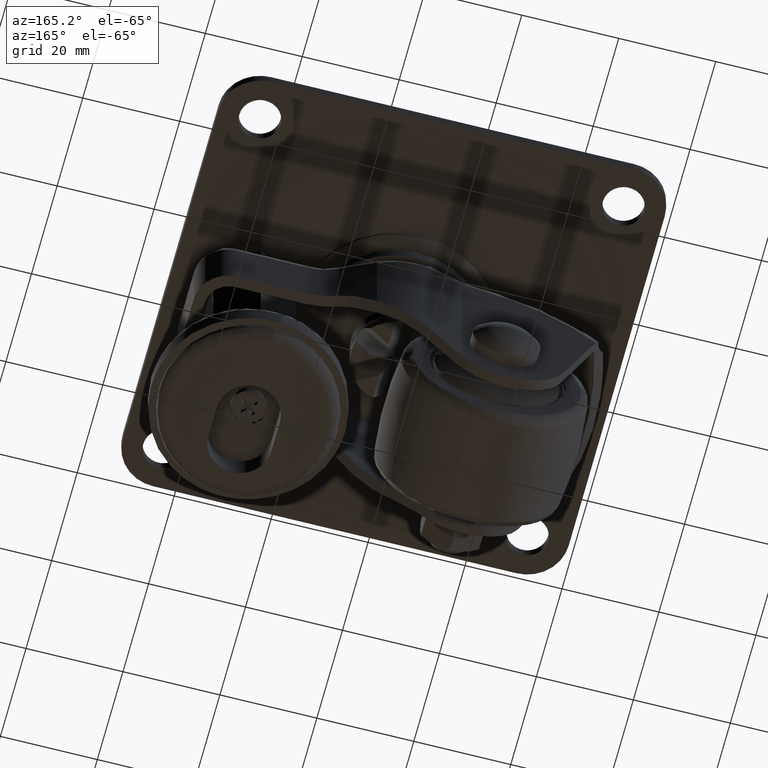
[diagram: clean part render]
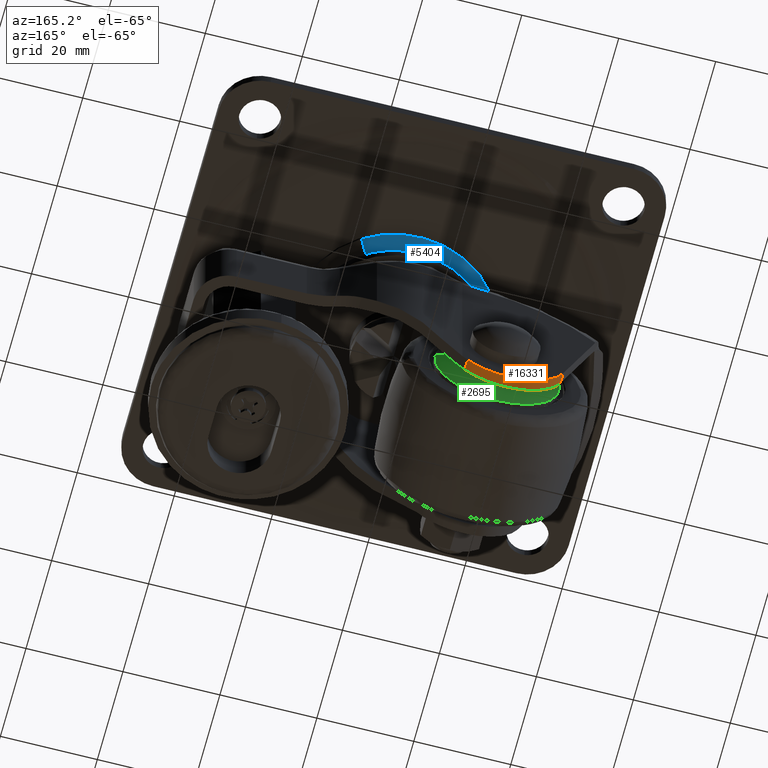
[diagram: same view with three faces highlighted in distinct colors, each labeled with its STEP entity id]
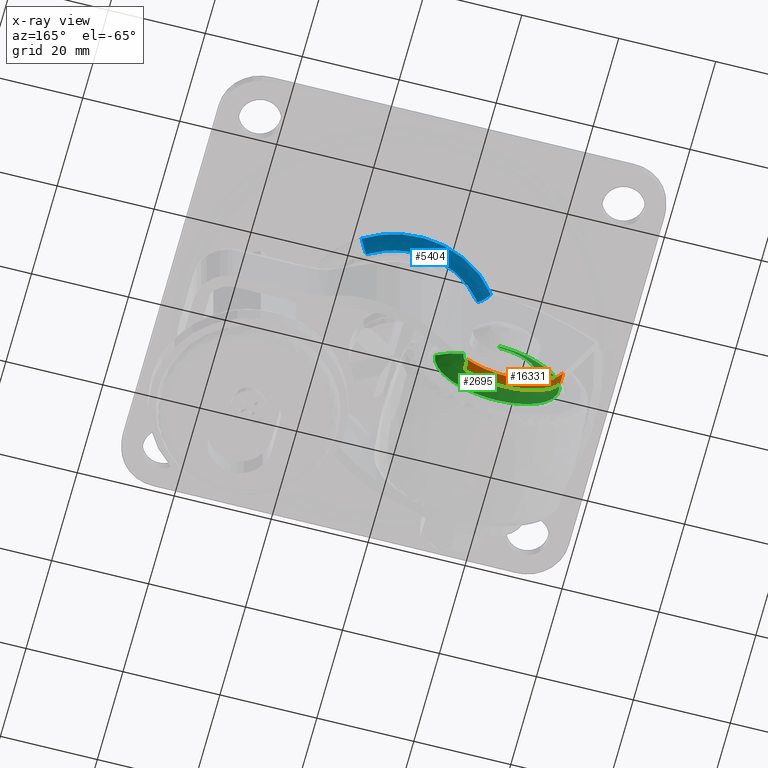
[diagram: x-ray of the same camera — body ghosted, the three highlighted faces saturated]
A machine part, auxiliary view with three faces highlighted in distinct colors.
The next image is the same camera in x-ray (body ghosted, the three faces saturated) — at least one of them is partly hidden behind the body in this view.
Their STEP definitions:

[orange] entity #16331 — the highlighted face is a freeform B-spline surface patch.
#15971=CARTESIAN_POINT('',(-10.550506050550039,15.500000000000000,-48.520913486604499));
#15972=VERTEX_POINT('',#15971);
#16007=CARTESIAN_POINT('',(-30.259744156884249,15.500000000000000,-44.149468545291803));
#16008=VERTEX_POINT('',#16007);
#16014=CARTESIAN_POINT('',(-10.550506050550069,15.500000000000000,-48.520913486604471));
#16015=CARTESIAN_POINT('',(-15.202478717044821,15.499999999999998,-53.133891030680012));
#16016=CARTESIAN_POINT('',(-21.598414302848958,15.500000000000000,-51.715293309617451));
#16017=CARTESIAN_POINT('',(-27.994349888653094,15.499999999999998,-50.296695588554890));
#16018=CARTESIAN_POINT('',(-30.259744156884249,15.500000000000000,-44.149468545291803));
#16026=(BOUNDED_CURVE()B_SPLINE_CURVE(2,(#16014,#16015,#16016,#16017,#16018),.UNSPECIFIED.,.F.,.U.)B_SPLINE_CURVE_WITH_KNOTS((3,2,3),(0.0,0.500000000000000,1.0),.UNSPECIFIED.)CURVE()GEOMETRIC_REPRESENTATION_ITEM()RATIONAL_B_SPLINE_CURVE((1.0,0.877713709330709,1.0,0.877713709330709,1.0))REPRESENTATION_ITEM(''));
#16027=EDGE_CURVE('',#15972,#16008,#16026,.T.);
#16174=CARTESIAN_POINT('',(-10.550506050550039,17.800000000000001,-48.520913486604499));
#16175=VERTEX_POINT('',#16174);
#16176=CARTESIAN_POINT('',(-10.550506050550039,15.500000000000000,-48.520913486604499));
#16177=CARTESIAN_POINT('',(-10.550506050550039,17.800000000000001,-48.520913486604499));
#16178=QUASI_UNIFORM_CURVE('',1,(#16176,#16177),.UNSPECIFIED.,.F.,.U.);
#16179=EDGE_CURVE('',#15972,#16175,#16178,.T.);
#16291=CARTESIAN_POINT('',(-30.364506304114329,15.442499999999971,-43.853300857068973));
#16292=CARTESIAN_POINT('',(-30.364506304114339,17.858937500000000,-43.853300857068973));
#16293=CARTESIAN_POINT('',(-23.822889365422185,15.442499999999979,-63.146405776575648));
#16294=CARTESIAN_POINT('',(-23.822889365422185,17.858937500000010,-63.146405776575676));
#16295=CARTESIAN_POINT('',(-10.120198414757940,15.442500000000001,-48.071495816039842));
#16296=CARTESIAN_POINT('',(-10.120198414757940,17.858937500000032,-48.071495816039850));
#16304=(BOUNDED_SURFACE()B_SPLINE_SURFACE(1,2,((#16291,#16293,#16295),(#16292,#16294,#16296)),.UNSPECIFIED.,.F.,.F.,.U.)B_SPLINE_SURFACE_WITH_KNOTS((2,2),(3,3),(0.0,2.416437500000031),(0.0,27.434260193530669),.UNSPECIFIED.)GEOMETRIC_REPRESENTATION_ITEM()RATIONAL_B_SPLINE_SURFACE(((1.0,0.507538362960704,1.0),(1.0,0.507538362960704,1.0)))REPRESENTATION_ITEM('')SURFACE());
#16305=ORIENTED_EDGE('',*,*,#16027,.T.);
#16306=CARTESIAN_POINT('',(-30.259744156884249,17.800000000000001,-44.149468545291803));
#16307=VERTEX_POINT('',#16306);
#16308=CARTESIAN_POINT('',(-30.259744156884249,15.500000000000000,-44.149468545291803));
#16309=CARTESIAN_POINT('',(-30.259744156884249,17.800000000000001,-44.149468545291803));
#16310=QUASI_UNIFORM_CURVE('',1,(#16308,#16309),.UNSPECIFIED.,.F.,.U.);
#16311=EDGE_CURVE('',#16008,#16307,#16310,.T.);
#16312=ORIENTED_EDGE('',*,*,#16311,.T.);
#16313=CARTESIAN_POINT('',(-30.259744156884260,17.800000000000001,-44.149468545291789));
#16314=CARTESIAN_POINT('',(-27.994349888653112,17.799999999999997,-50.296695588554876));
#16315=CARTESIAN_POINT('',(-21.598414302848958,17.800000000000001,-51.715293309617451));
#16316=CARTESIAN_POINT('',(-15.202478717044819,17.799999999999997,-53.133891030680026));
#16317=CARTESIAN_POINT('',(-10.550506050550069,17.800000000000001,-48.520913486604471));
#16325=(BOUNDED_CURVE()B_SPLINE_CURVE(2,(#16313,#16314,#16315,#16316,#16317),.UNSPECIFIED.,.F.,.U.)B_SPLINE_CURVE_WITH_KNOTS((3,2,3),(0.0,0.500000000000000,1.0),.UNSPECIFIED.)CURVE()GEOMETRIC_REPRESENTATION_ITEM()RATIONAL_B_SPLINE_CURVE((1.0,0.877713709330709,1.0,0.877713709330709,1.0))REPRESENTATION_ITEM(''));
#16326=EDGE_CURVE('',#16307,#16175,#16325,.T.);
#16327=ORIENTED_EDGE('',*,*,#16326,.T.);
#16328=ORIENTED_EDGE('',*,*,#16179,.F.);
#16329=EDGE_LOOP('',(#16305,#16312,#16327,#16328));
#16330=FACE_OUTER_BOUND('',#16329,.T.);
#16331=ADVANCED_FACE('',(#16330),#16304,.T.);

[blue] entity #5404 — the highlighted face is a freeform B-spline surface patch.
#3402=CARTESIAN_POINT('',(11.257065604247289,17.520328669861211,-2.864285062101066));
#3403=VERTEX_POINT('',#3402);
#3417=CARTESIAN_POINT('',(-16.847833639729618,12.240667644041761,-2.864285061920642));
#3418=VERTEX_POINT('',#3417);
#3419=CARTESIAN_POINT('',(-16.847833639729622,12.240667644041761,-2.864285061920642));
#3420=CARTESIAN_POINT('',(-10.610901956346105,20.825067652447711,-2.864285061755751));
#3421=CARTESIAN_POINT('',(0.0,20.825067652447700,-2.864285061755750));
#3422=CARTESIAN_POINT('',(6.113619241497379,20.825067652447704,-2.864285061755751));
#3423=CARTESIAN_POINT('',(11.257065604247291,17.520328669861211,-2.864285062101065));
#3431=(BOUNDED_CURVE()B_SPLINE_CURVE(2,(#3419,#3420,#3421,#3422,#3423),.UNSPECIFIED.,.F.,.U.)B_SPLINE_CURVE_WITH_KNOTS((3,2,3),(0.101249659000484,0.250000000000000,0.342539826044348),.UNSPECIFIED.)CURVE()GEOMETRIC_REPRESENTATION_ITEM()RATIONAL_B_SPLINE_CURVE((0.858840265006144,0.825728135300213,1.0,0.891582849925735,0.863428933516242))REPRESENTATION_ITEM(''));
#3432=EDGE_CURVE('',#3418,#3403,#3431,.T.);
#5284=CARTESIAN_POINT('',(9.692791202504802,15.085715368658910,-4.315556000000052));
#5285=VERTEX_POINT('',#5284);
#5301=CARTESIAN_POINT('',(11.257065604247293,17.520328669861208,-2.864285062101066));
#5302=CARTESIAN_POINT('',(10.671640748202426,16.609182173145133,-4.315555995339314));
#5303=CARTESIAN_POINT('',(9.692791202504802,15.085715368658903,-4.315556000000052));
#5311=(BOUNDED_CURVE()B_SPLINE_CURVE(2,(#5301,#5302,#5303),.UNSPECIFIED.,.F.,.U.)B_SPLINE_CURVE_WITH_KNOTS((3,3),(-1.611695069741953,-0.388016439357662),.UNSPECIFIED.)CURVE()GEOMETRIC_REPRESENTATION_ITEM()RATIONAL_B_SPLINE_CURVE((0.897865251558117,0.802611778346377,0.897910175510607))REPRESENTATION_ITEM(''));
#5312=EDGE_CURVE('',#3403,#5285,#5311,.T.);
#5319=CARTESIAN_POINT('',(-14.506669802745471,10.539712551584330,-4.315556000000052));
#5320=VERTEX_POINT('',#5319);
#5321=CARTESIAN_POINT('',(-16.847833639729618,12.240667644041759,-2.864285061920642));
#5322=CARTESIAN_POINT('',(-15.971660315685376,11.604090462200956,-4.315555996559684));
#5323=CARTESIAN_POINT('',(-14.506669802745472,10.539712551584326,-4.315556000000052));
#5331=(BOUNDED_CURVE()B_SPLINE_CURVE(2,(#5321,#5322,#5323),.UNSPECIFIED.,.F.,.U.)B_SPLINE_CURVE_WITH_KNOTS((3,3),(-1.611695069912138,-0.388016438437837),.UNSPECIFIED.)CURVE()GEOMETRIC_REPRESENTATION_ITEM()RATIONAL_B_SPLINE_CURVE((0.918526775855720,0.821081345613150,0.918572733710117))REPRESENTATION_ITEM(''));
#5332=EDGE_CURVE('',#3418,#5320,#5331,.T.);
#5367=CARTESIAN_POINT('',(-16.923304372484619,12.295500340989159,-2.733289310488109));
#5368=CARTESIAN_POINT('',(-5.312006330170341,28.277081039632854,-2.733289310488110));
#5369=CARTESIAN_POINT('',(11.307492205586355,17.598811878636152,-2.733289310488109));
#5370=CARTESIAN_POINT('',(-16.006645438243339,11.629508641586796,-4.401774659788257));
#5371=CARTESIAN_POINT('',(-5.024278948205048,26.745439322463977,-4.401774659788257));
#5372=CARTESIAN_POINT('',(10.695016442817073,16.645563754894294,-4.401774659788256));
#5373=CARTESIAN_POINT('',(-14.376604087677915,10.445214277993724,-4.311975093893101));
#5374=CARTESIAN_POINT('',(-4.512630053753845,24.021809802283926,-4.311975093893100));
#5375=CARTESIAN_POINT('',(9.605886361562387,14.950457973446539,-4.311975093893101));
#5383=(BOUNDED_SURFACE()B_SPLINE_SURFACE(2,2,((#5367,#5370,#5373),(#5368,#5371,#5374),(#5369,#5372,#5375)),.UNSPECIFIED.,.F.,.F.,.U.)B_SPLINE_SURFACE_WITH_KNOTS((3,3),(3,3),(0.0,33.263186839191142),(0.0,3.760273654195879),.UNSPECIFIED.)GEOMETRIC_REPRESENTATION_ITEM()RATIONAL_B_SPLINE_SURFACE(((0.928747940620265,0.810857864823713,0.928798530541974),(0.667604925777416,0.582862885596429,0.667641290951916),(0.907856499432837,0.792618266485530,0.907905951374769)))REPRESENTATION_ITEM('')SURFACE());
#5384=CARTESIAN_POINT('',(-14.506669802745469,10.539712551584326,-4.315556000000052));
#5385=CARTESIAN_POINT('',(-9.136418025576363,17.931230000000006,-4.315556000000001));
#5386=CARTESIAN_POINT('',(0.0,17.931229999999999,-4.315556000000000));
#5387=CARTESIAN_POINT('',(5.264074748080021,17.931229999999996,-4.315556000000000));
#5388=CARTESIAN_POINT('',(9.692791202504802,15.085715368658910,-4.315556000000052));
#5396=(BOUNDED_CURVE()B_SPLINE_CURVE(2,(#5384,#5385,#5386,#5387,#5388),.UNSPECIFIED.,.F.,.U.)B_SPLINE_CURVE_WITH_KNOTS((3,2,3),(0.101249659002435,0.250000000000000,0.342539826047805),.UNSPECIFIED.)CURVE()GEOMETRIC_REPRESENTATION_ITEM()RATIONAL_B_SPLINE_CURVE((0.858840265005276,0.825728135302498,1.0,0.891582849921686,0.863428933514139))REPRESENTATION_ITEM(''));
#5397=EDGE_CURVE('',#5320,#5285,#5396,.T.);
#5398=ORIENTED_EDGE('',*,*,#5397,.F.);
#5399=ORIENTED_EDGE('',*,*,#5332,.F.);
#5400=ORIENTED_EDGE('',*,*,#3432,.T.);
#5401=ORIENTED_EDGE('',*,*,#5312,.T.);
#5402=EDGE_LOOP('',(#5398,#5399,#5400,#5401));
#5403=FACE_OUTER_BOUND('',#5402,.T.);
#5404=ADVANCED_FACE('',(#5403),#5383,.T.);

[green] entity #2695 — the highlighted face is a freeform B-spline surface patch.
#263=CARTESIAN_POINT('',(-25.485934556651920,14.618241553379381,-40.589149905930128));
#264=VERTEX_POINT('',#263);
#270=CARTESIAN_POINT('',(-20.762606682930059,14.618244290481730,-33.017569494658652));
#271=VERTEX_POINT('',#270);
#272=CARTESIAN_POINT('',(-25.485934556651920,14.618241553379374,-40.589149905930121));
#273=CARTESIAN_POINT('',(-25.509082263439197,14.618241638881736,-40.295028871968775));
#274=CARTESIAN_POINT('',(-25.509082299592659,14.618241726988250,-39.999998366930832));
#275=CARTESIAN_POINT('',(-25.509082925102909,14.618243251365987,-34.895518449020543));
#276=CARTESIAN_POINT('',(-20.762606682930059,14.618244290481732,-33.017569494658652));
#284=(BOUNDED_CURVE()B_SPLINE_CURVE(2,(#272,#273,#274,#275,#276),.UNSPECIFIED.,.F.,.U.)B_SPLINE_CURVE_WITH_KNOTS((3,2,3),(0.736331395505256,0.750000000000000,0.937532617261324),.UNSPECIFIED.)CURVE()GEOMETRIC_REPRESENTATION_ITEM()RATIONAL_B_SPLINE_CURVE((0.969723554163546,0.983986233731385,1.0,0.780291872391278,0.890203266414945))REPRESENTATION_ITEM(''));
#285=EDGE_CURVE('',#264,#271,#284,.T.);
#337=CARTESIAN_POINT('',(-17.999999000000098,14.618242853160400,-32.490919492879563));
#338=VERTEX_POINT('',#337);
#339=CARTESIAN_POINT('',(-20.762606682930059,14.618244290481732,-33.017569494658652));
#340=CARTESIAN_POINT('',(-19.431502371732524,14.618243607923674,-32.490918277274560));
#341=CARTESIAN_POINT('',(-17.999999000000098,14.618242853160400,-32.490919492879563));
#349=(BOUNDED_CURVE()B_SPLINE_CURVE(2,(#339,#340,#341),.UNSPECIFIED.,.F.,.U.)B_SPLINE_CURVE_WITH_KNOTS((3,3),(0.937532617261324,1.0),.UNSPECIFIED.)CURVE()GEOMETRIC_REPRESENTATION_ITEM()RATIONAL_B_SPLINE_CURVE((0.890203266414945,0.926814908795269,1.0))REPRESENTATION_ITEM(''));
#350=EDGE_CURVE('',#271,#338,#349,.T.);
#352=CARTESIAN_POINT('',(-10.541138889158180,14.618240789469221,-39.132963430457202));
#353=VERTEX_POINT('',#352);
#367=CARTESIAN_POINT('',(-17.999999000000098,14.618240794139419,-47.509077556159752));
#368=VERTEX_POINT('',#367);
#369=CARTESIAN_POINT('',(-10.541138889158189,14.618240789469224,-39.132963430457188));
#370=CARTESIAN_POINT('',(-10.490915443840438,14.618240794139423,-39.565024087619378));
#371=CARTESIAN_POINT('',(-10.490915443840439,14.618240794139419,-39.999994000000093));
#372=CARTESIAN_POINT('',(-10.490915443840439,14.618240794139428,-47.509077556159760));
#373=CARTESIAN_POINT('',(-17.999999000000098,14.618240794139419,-47.509077556159752));
#381=(BOUNDED_CURVE()B_SPLINE_CURVE(2,(#369,#370,#371,#372,#373),.UNSPECIFIED.,.F.,.U.)B_SPLINE_CURVE_WITH_KNOTS((3,2,3),(0.229999999028980,0.250000000000000,0.500000000000000),.UNSPECIFIED.)CURVE()GEOMETRIC_REPRESENTATION_ITEM()RATIONAL_B_SPLINE_CURVE((0.956886116279457,0.976568541357303,1.0,0.707106781186547,1.0))REPRESENTATION_ITEM(''));
#382=EDGE_CURVE('',#353,#368,#381,.T.);
#384=CARTESIAN_POINT('',(-17.999999000000098,14.618240794139419,-47.509077556159752));
#385=CARTESIAN_POINT('',(-24.941328293840193,14.618240794139423,-47.509077556159767));
#386=CARTESIAN_POINT('',(-25.485934556651923,14.618241553379379,-40.589149905930128));
#394=(BOUNDED_CURVE()B_SPLINE_CURVE(2,(#384,#385,#386),.UNSPECIFIED.,.F.,.U.)B_SPLINE_CURVE_WITH_KNOTS((3,3),(0.500000000000000,0.736331395505256),.UNSPECIFIED.)CURVE()GEOMETRIC_REPRESENTATION_ITEM()RATIONAL_B_SPLINE_CURVE((1.0,0.723120547455162,0.969723554163547))REPRESENTATION_ITEM(''));
#395=EDGE_CURVE('',#368,#264,#394,.T.);
#1853=CARTESIAN_POINT('',(-29.346302099241878,12.557704680228500,-46.053266802238809));
#1854=VERTEX_POINT('',#1853);
#1855=CARTESIAN_POINT('',(-22.702694072352958,12.557703541667010,-28.030640334533931));
#1856=VERTEX_POINT('',#1855);
#1857=CARTESIAN_POINT('',(-29.346302099241878,12.557704680228499,-46.053266802238824));
#1858=CARTESIAN_POINT('',(-30.860042137059164,12.557704344838074,-43.215900027137550));
#1859=CARTESIAN_POINT('',(-30.860042137059160,12.557704170545881,-39.999992758123852));
#1860=CARTESIAN_POINT('',(-30.860042137059157,12.557703695544053,-31.235619786580028));
#1861=CARTESIAN_POINT('',(-22.702694072352966,12.557703541667012,-28.030640334533931));
#1869=(BOUNDED_CURVE()B_SPLINE_CURVE(2,(#1857,#1858,#1859,#1860,#1861),.UNSPECIFIED.,.F.,.U.)B_SPLINE_CURVE_WITH_KNOTS((3,2,3),(0.169885459229912,0.250000000000000,0.437908120476305),.UNSPECIFIED.)CURVE()GEOMETRIC_REPRESENTATION_ITEM()RATIONAL_B_SPLINE_CURVE((0.872436375278084,0.906139977120349,1.0,0.779851943010036,0.890644746944029))REPRESENTATION_ITEM(''));
#1870=EDGE_CURVE('',#1854,#1856,#1869,.T.);
#1931=CARTESIAN_POINT('',(-17.999999000000098,12.557703473571371,-27.139948379188549));
#1932=VERTEX_POINT('',#1931);
#1933=CARTESIAN_POINT('',(-22.702694072352958,12.557703541667008,-28.030640334533935));
#1934=CARTESIAN_POINT('',(-20.435695191051760,12.557703473571371,-27.139948379188564));
#1935=CARTESIAN_POINT('',(-17.999999000000098,12.557703473571371,-27.139948379188549));
#1943=(BOUNDED_CURVE()B_SPLINE_CURVE(2,(#1933,#1934,#1935),.UNSPECIFIED.,.F.,.U.)B_SPLINE_CURVE_WITH_KNOTS((3,3),(0.437908120476305,0.500000000000000),.UNSPECIFIED.)CURVE()GEOMETRIC_REPRESENTATION_ITEM()RATIONAL_B_SPLINE_CURVE((0.890644746944029,0.927254838176512,1.0))REPRESENTATION_ITEM(''));
#1944=EDGE_CURVE('',#1856,#1932,#1943,.T.);
#1953=CARTESIAN_POINT('',(-17.999999000000098,12.557704867520380,-52.860037137059152));
#1954=VERTEX_POINT('',#1953);
#1955=CARTESIAN_POINT('',(-17.999999000000098,12.557704867520380,-52.860037137059152));
#1956=CARTESIAN_POINT('',(-25.714877843214783,12.557704867520378,-52.860037137059152));
#1957=CARTESIAN_POINT('',(-29.346302099241878,12.557704680228499,-46.053266802238824));
#1965=(BOUNDED_CURVE()B_SPLINE_CURVE(2,(#1955,#1956,#1957),.UNSPECIFIED.,.F.,.U.)B_SPLINE_CURVE_WITH_KNOTS((3,3),(0.0,0.169885459229912),.UNSPECIFIED.)CURVE()GEOMETRIC_REPRESENTATION_ITEM()RATIONAL_B_SPLINE_CURVE((1.0,0.800966804066198,0.872436375278084))REPRESENTATION_ITEM(''));
#1966=EDGE_CURVE('',#1954,#1854,#1965,.T.);
#1968=CARTESIAN_POINT('',(-5.225968476710634,12.557704867503681,-38.515119029555017));
#1969=VERTEX_POINT('',#1968);
#1970=CARTESIAN_POINT('',(-5.225968476710634,12.557704867503682,-38.515119029555017));
#1971=CARTESIAN_POINT('',(-5.139955862941039,12.557704867520377,-39.255065338538152));
#1972=CARTESIAN_POINT('',(-5.139955862941040,12.557704867520380,-39.999994000000093));
#1973=CARTESIAN_POINT('',(-5.139955862941040,12.557704867520382,-52.860037137059145));
#1974=CARTESIAN_POINT('',(-17.999999000000098,12.557704867520380,-52.860037137059152));
#1982=(BOUNDED_CURVE()B_SPLINE_CURVE(2,(#1970,#1971,#1972,#1973,#1974),.UNSPECIFIED.,.F.,.U.)B_SPLINE_CURVE_WITH_KNOTS((3,2,3),(0.729999999986541,0.750000000000000,1.0),.UNSPECIFIED.)CURVE()GEOMETRIC_REPRESENTATION_ITEM()RATIONAL_B_SPLINE_CURVE((0.956886118164169,0.976568542479155,1.0,0.707106781186547,1.0))REPRESENTATION_ITEM(''));
#1983=EDGE_CURVE('',#1969,#1954,#1982,.T.);
#2624=CARTESIAN_POINT('',(-10.817733353357859,14.679516818127455,-39.165115441265044));
#2625=CARTESIAN_POINT('',(-7.718515632378157,14.016205074468813,-38.804857195274487));
#2626=CARTESIAN_POINT('',(-4.978013615166600,12.415240729010451,-38.486296662024152));
#2627=CARTESIAN_POINT('',(-10.769372330978054,14.679516818127455,-39.581154044773115));
#2628=CARTESIAN_POINT('',(-7.649286356867918,14.016205074468807,-39.400420516474732));
#2629=CARTESIAN_POINT('',(-4.890331460591911,12.415240729010440,-39.240605800804211));
#2630=CARTESIAN_POINT('',(-10.769372330978054,14.679516818127457,-39.999994000000100));
#2631=CARTESIAN_POINT('',(-7.649286356867920,14.016205074468813,-39.999994000000093));
#2632=CARTESIAN_POINT('',(-4.890331460591910,12.415240729010453,-39.999994000000093));
#2633=CARTESIAN_POINT('',(-10.769372330978054,14.679516818127455,-47.230620669022130));
#2634=CARTESIAN_POINT('',(-7.649286356867918,14.016205074468813,-50.350706643132277));
#2635=CARTESIAN_POINT('',(-4.890331460591910,12.415240729010451,-53.109661539408286));
#2636=CARTESIAN_POINT('',(-17.999999000000095,14.679516818127457,-47.230620669022144));
#2637=CARTESIAN_POINT('',(-17.999999000000098,14.016205074468813,-50.350706643132284));
#2638=CARTESIAN_POINT('',(-17.999999000000095,12.415240729010453,-53.109661539408293));
#2639=CARTESIAN_POINT('',(-25.230625669022139,14.679516818127455,-47.230620669022130));
#2640=CARTESIAN_POINT('',(-28.350711643132286,14.016205074468813,-50.350706643132277));
#2641=CARTESIAN_POINT('',(-31.109666539408291,12.415240729010451,-53.109661539408286));
#2642=CARTESIAN_POINT('',(-25.230625669022135,14.679516818127457,-39.999994000000100));
#2643=CARTESIAN_POINT('',(-28.350711643132271,14.016205074468813,-39.999994000000093));
#2644=CARTESIAN_POINT('',(-31.109666539408284,12.415240729010453,-39.999994000000093));
#2645=CARTESIAN_POINT('',(-25.230625669022139,14.679516818127455,-32.769367330978056));
#2646=CARTESIAN_POINT('',(-28.350711643132286,14.016205074468813,-29.649281356867920));
#2647=CARTESIAN_POINT('',(-31.109666539408291,12.415240729010451,-26.890326460591911));
#2648=CARTESIAN_POINT('',(-17.999999000000095,14.679516818127457,-32.769367330978049));
#2649=CARTESIAN_POINT('',(-17.999999000000098,14.016205074468813,-29.649281356867917));
#2650=CARTESIAN_POINT('',(-17.999999000000095,12.415240729010453,-26.890326460591908));
#2658=(BOUNDED_SURFACE()B_SPLINE_SURFACE(2,2,((#2624,#2627,#2630,#2633,#2636,#2639,#2642,#2645,#2648),(#2625,#2628,#2631,#2634,#2637,#2640,#2643,#2646,#2649),(#2626,#2629,#2632,#2635,#2638,#2641,#2644,#2647,#2650)),.UNSPECIFIED.,.F.,.F.,.U.)B_SPLINE_SURFACE_WITH_KNOTS((3,3),(3,2,2,2,3),(0.0,6.339539233368200),(0.0,1.737664307262964,23.458472679363751,45.179281051464542,66.900089423565333),.UNSPECIFIED.)GEOMETRIC_REPRESENTATION_ITEM()RATIONAL_B_SPLINE_SURFACE(((0.889847577260732,0.908151066192885,0.929940933103407,0.657567539900365,0.929940933103407,0.657567539900365,0.929940933103407,0.657567539900365,0.929940933103407),(0.875045883105310,0.893044912428792,0.914472327438630,0.646629583939300,0.914472327438630,0.646629583939300,0.914472327438630,0.646629583939300,0.914472327438630),(0.882378950023712,0.900528814965124,0.922135796179648,0.652048474653485,0.922135796179648,0.652048474653485,0.922135796179648,0.652048474653485,0.922135796179648)))REPRESENTATION_ITEM('')SURFACE());
#2659=ORIENTED_EDGE('',*,*,#382,.F.);
#2660=CARTESIAN_POINT('',(-10.541138889158184,14.618240789469221,-39.132963430457202));
#2661=CARTESIAN_POINT('',(-7.735322037679712,13.975504183199513,-38.806810543300337));
#2662=CARTESIAN_POINT('',(-5.225968476710635,12.557704867503684,-38.515119029555024));
#2670=(BOUNDED_CURVE()B_SPLINE_CURVE(2,(#2660,#2661,#2662),.UNSPECIFIED.,.F.,.U.)B_SPLINE_CURVE_WITH_KNOTS((3,3),(0.110946533577407,0.192223121640863),.UNSPECIFIED.)CURVE()GEOMETRIC_REPRESENTATION_ITEM()RATIONAL_B_SPLINE_CURVE((0.888548786798201,0.876005455834951,0.881758548213162))REPRESENTATION_ITEM(''));
#2671=EDGE_CURVE('',#353,#1969,#2670,.T.);
#2672=ORIENTED_EDGE('',*,*,#2671,.T.);
#2673=ORIENTED_EDGE('',*,*,#1983,.T.);
#2674=ORIENTED_EDGE('',*,*,#1966,.T.);
#2675=ORIENTED_EDGE('',*,*,#1870,.T.);
#2676=ORIENTED_EDGE('',*,*,#1944,.T.);
#2677=CARTESIAN_POINT('',(-17.999999000000095,14.618242853160401,-32.490919492879563));
#2678=CARTESIAN_POINT('',(-17.999999000000106,13.975506189761045,-29.666203629083714));
#2679=CARTESIAN_POINT('',(-17.999999000000098,12.557703473571372,-27.139948379188549));
#2687=(BOUNDED_CURVE()B_SPLINE_CURVE(2,(#2677,#2678,#2679),.UNSPECIFIED.,.F.,.U.)B_SPLINE_CURVE_WITH_KNOTS((3,3),(0.110946400928334,0.192223161856963),.UNSPECIFIED.)CURVE()GEOMETRIC_REPRESENTATION_ITEM()RATIONAL_B_SPLINE_CURVE((0.928583674535439,0.915475126648701,0.921487455136013))REPRESENTATION_ITEM(''));
#2688=EDGE_CURVE('',#338,#1932,#2687,.T.);
#2689=ORIENTED_EDGE('',*,*,#2688,.F.);
#2690=ORIENTED_EDGE('',*,*,#350,.F.);
#2691=ORIENTED_EDGE('',*,*,#285,.F.);
#2692=ORIENTED_EDGE('',*,*,#395,.F.);
#2693=EDGE_LOOP('',(#2659,#2672,#2673,#2674,#2675,#2676,#2689,#2690,#2691,#2692));
#2694=FACE_OUTER_BOUND('',#2693,.T.);
#2695=ADVANCED_FACE('',(#2694),#2658,.T.);